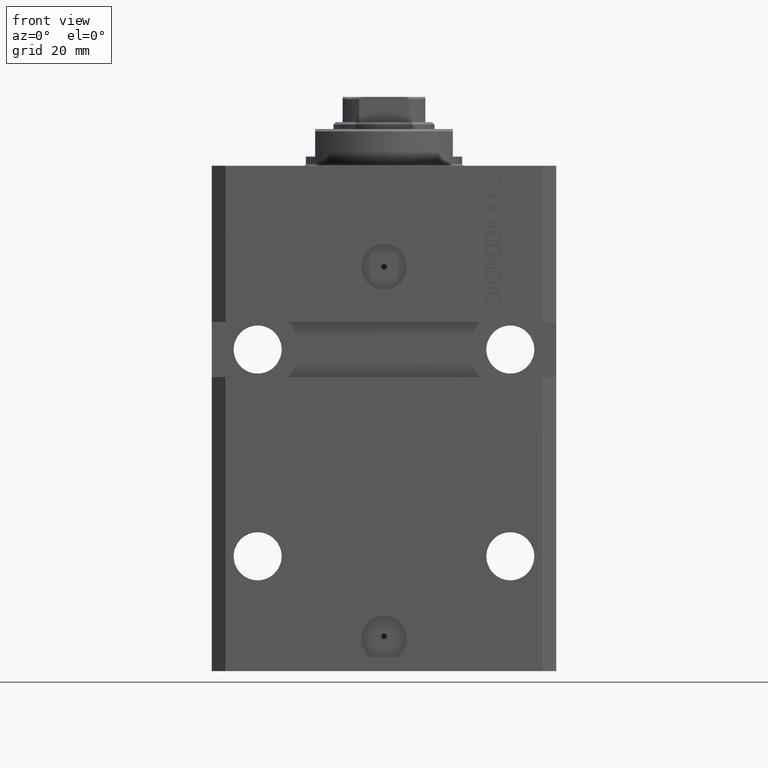
[diagram: clean part render]
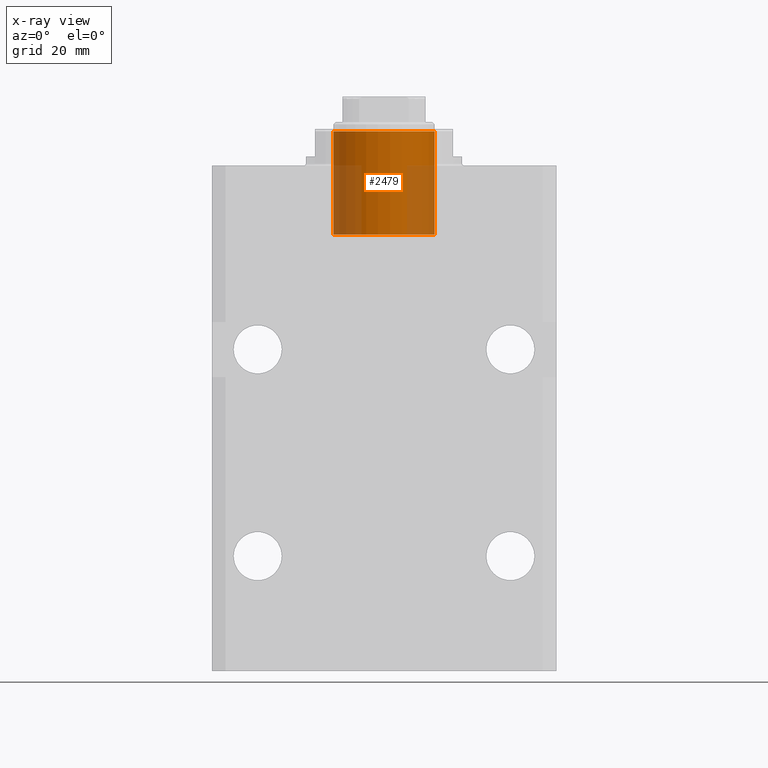
[diagram: x-ray — body ghosted, one internal face saturated and labeled with its STEP entity id]
A machine part, front view, then the same camera in x-ray: the body is ghosted and one INTERNAL B-rep face — a face not visible from any outside direction — is saturated and labeled: STEP entity #2479.
In plain terms, the highlighted cylindrical surface (partial cylindrical patch) has radius 11 mm, axis along (0, -0, 1).
Its self-contained STEP definition (entity closure, byte-faithful):
#288 = DIRECTION ( 'NONE',  ( -0.000000000000000000, -0.000000000000000000, -1.000000000000000000 ) ) ;
#1291 = EDGE_CURVE ( 'NONE', #44469, #26020, #23721, .T. ) ;
#2479 = ADVANCED_FACE ( 'NONE', ( #26887 ), #8002, .F. ) ;
#3904 = ORIENTED_EDGE ( 'NONE', *, *, #1291, .T. ) ;
#4009 = EDGE_CURVE ( 'NONE', #31323, #8893, #41669, .T. ) ;
#4226 = DIRECTION ( 'NONE',  ( -0.000000000000000000, -0.000000000000000000, -1.000000000000000000 ) ) ;
#4651 = CARTESIAN_POINT ( 'NONE',  ( 11.00000000000000000, 1.347111479062088405E-15, -7.500000000000000000 ) ) ;
#4690 = VECTOR ( 'NONE', #4226, 1000.000000000000000 ) ;
#6761 = DIRECTION ( 'NONE',  ( 0.000000000000000000, 0.000000000000000000, -1.000000000000000000 ) ) ;
#8002 = CYLINDRICAL_SURFACE ( 'NONE', #40073, 11.00000000000000000 ) ;
#8893 = VERTEX_POINT ( 'NONE', #11115 ) ;
#10742 = CARTESIAN_POINT ( 'NONE',  ( 11.00000000000000000, 1.347111479062088405E-15, 15.00000000000000000 ) ) ;
#11106 = CARTESIAN_POINT ( 'NONE',  ( 11.00000000000000000, 1.347111479062088405E-15, 15.00000000000000000 ) ) ;
#11115 = CARTESIAN_POINT ( 'NONE',  ( -11.00000000000000000, 0.000000000000000000, 15.00000000000000000 ) ) ;
#11638 = EDGE_CURVE ( 'NONE', #8893, #26020, #18497, .T. ) ;
#12427 = VECTOR ( 'NONE', #25393, 1000.000000000000000 ) ;
#14697 = DIRECTION ( 'NONE',  ( -1.000000000000000000, 0.000000000000000000, 0.000000000000000000 ) ) ;
#16539 = EDGE_CURVE ( 'NONE', #31323, #44469, #21518, .T. ) ;
#17409 = DIRECTION ( 'NONE',  ( -1.000000000000000000, 0.000000000000000000, 0.000000000000000000 ) ) ;
#18309 = CARTESIAN_POINT ( 'NONE',  ( 0.000000000000000000, 0.000000000000000000, 15.00000000000000000 ) ) ;
#18497 = LINE ( 'NONE', #43717, #4690 ) ;
#18884 = DIRECTION ( 'NONE',  ( -1.000000000000000000, 0.000000000000000000, 0.000000000000000000 ) ) ;
#20250 = ORIENTED_EDGE ( 'NONE', *, *, #16539, .T. ) ;
#21077 = CARTESIAN_POINT ( 'NONE',  ( -11.00000000000000000, 0.000000000000000000, -7.500000000000000000 ) ) ;
#21518 = LINE ( 'NONE', #11106, #12427 ) ;
#21715 = DIRECTION ( 'NONE',  ( 0.000000000000000000, 0.000000000000000000, -1.000000000000000000 ) ) ;
#23721 = CIRCLE ( 'NONE', #33813, 11.00000000000000000 ) ;
#25393 = DIRECTION ( 'NONE',  ( -0.000000000000000000, -0.000000000000000000, -1.000000000000000000 ) ) ;
#26020 = VERTEX_POINT ( 'NONE', #21077 ) ;
#26887 = FACE_OUTER_BOUND ( 'NONE', #36952, .T. ) ;
#31323 = VERTEX_POINT ( 'NONE', #10742 ) ;
#31596 = AXIS2_PLACEMENT_3D ( 'NONE', #18309, #21715, #14697 ) ;
#32711 = CARTESIAN_POINT ( 'NONE',  ( 0.000000000000000000, 0.000000000000000000, -7.500000000000000000 ) ) ;
#33813 = AXIS2_PLACEMENT_3D ( 'NONE', #32711, #6761, #17409 ) ;
#36952 = EDGE_LOOP ( 'NONE', ( #46334, #20250, #3904, #37558 ) ) ;
#37558 = ORIENTED_EDGE ( 'NONE', *, *, #11638, .F. ) ;
#40073 = AXIS2_PLACEMENT_3D ( 'NONE', #45549, #288, #18884 ) ;
#41669 = CIRCLE ( 'NONE', #31596, 11.00000000000000000 ) ;
#43717 = CARTESIAN_POINT ( 'NONE',  ( -11.00000000000000000, 0.000000000000000000, 15.00000000000000000 ) ) ;
#44469 = VERTEX_POINT ( 'NONE', #4651 ) ;
#45549 = CARTESIAN_POINT ( 'NONE',  ( 0.000000000000000000, 0.000000000000000000, 15.00000000000000000 ) ) ;
#46334 = ORIENTED_EDGE ( 'NONE', *, *, #4009, .F. ) ;